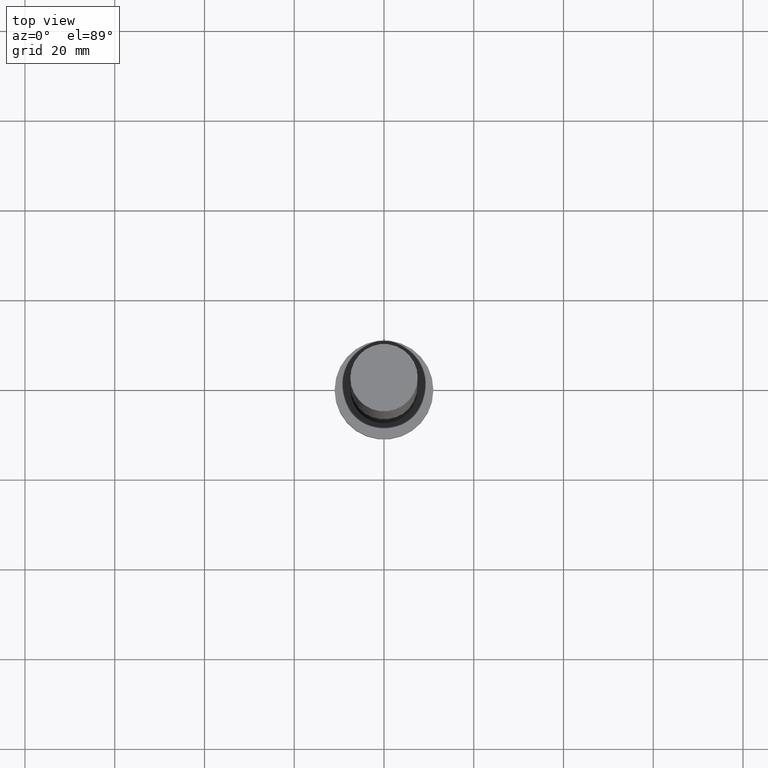
[diagram: clean part render]
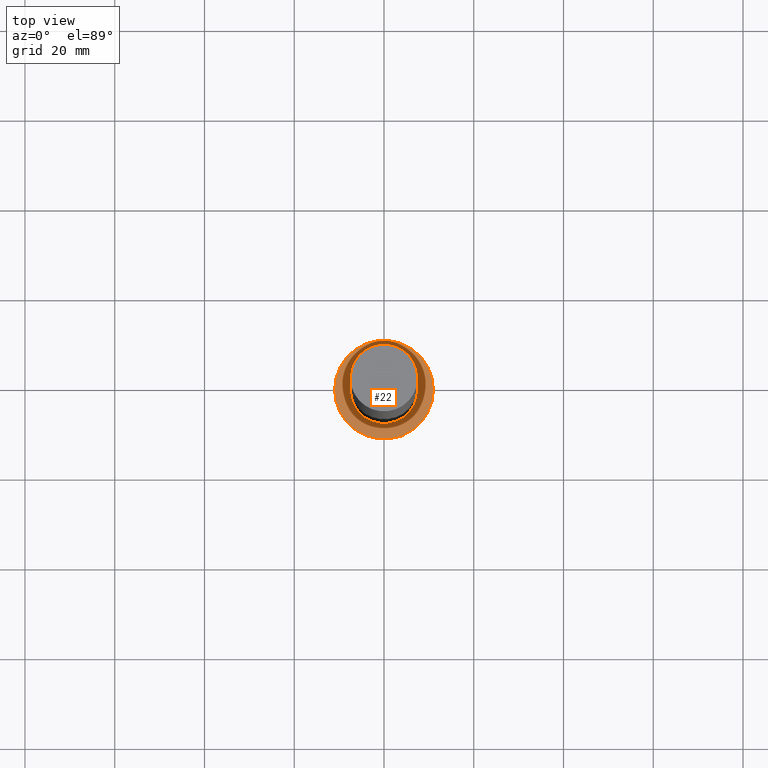
[diagram: same view with one face highlighted and labeled with its STEP entity id]
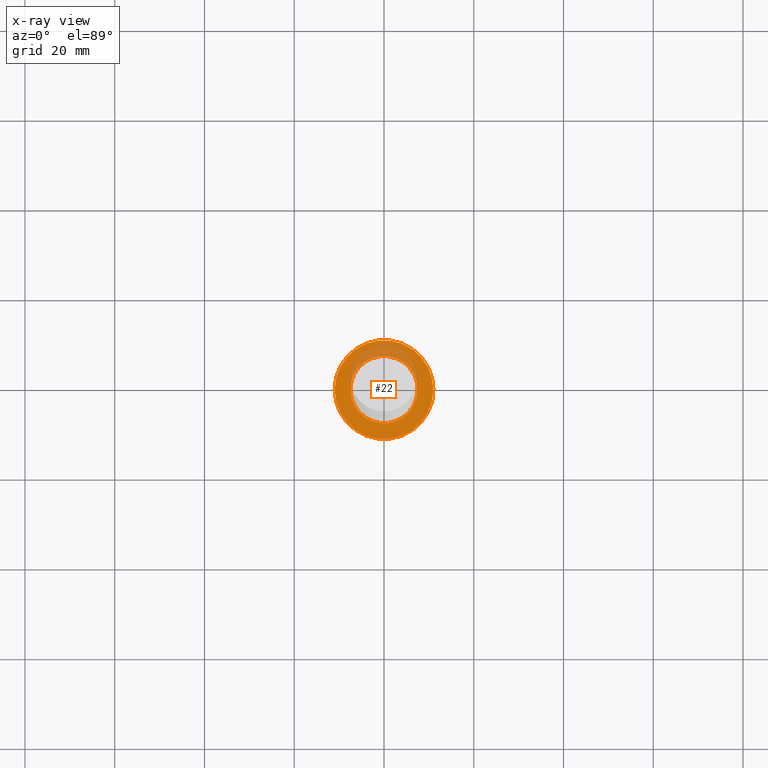
[diagram: x-ray of the same camera — body ghosted, the highlighted face saturated]
A machine part, top view. The second image highlights one B-rep face of the part: STEP entity #22.
The next image is the same camera in x-ray: the body ghosted, the highlighted face saturated — about 20% of this face is hidden behind the body in this view.
In plain terms, the highlighted planar face has unit normal (0, 0, 1).
Its self-contained STEP definition (entity closure, byte-faithful):
#2 = DIRECTION ( 'NONE',  ( 0.000000000000000000, 0.000000000000000000, 1.000000000000000000 ) ) ;
#3 = DIRECTION ( 'NONE',  ( 1.000000000000000000, 0.000000000000000000, 0.000000000000000000 ) ) ;
#15 = CARTESIAN_POINT ( 'NONE',  ( 0.000000000000000000, 0.000000000000000000, 7.000000000000000000 ) ) ;
#20 = DIRECTION ( 'NONE',  ( 0.000000000000000000, 0.000000000000000000, 1.000000000000000000 ) ) ;
#22 = ADVANCED_FACE ( 'NONE', ( #137, #196 ), #174, .T. ) ;
#32 = AXIS2_PLACEMENT_3D ( 'NONE', #144, #181, #3 ) ;
#36 = EDGE_LOOP ( 'NONE', ( #229, #52 ) ) ;
#39 = DIRECTION ( 'NONE',  ( 1.000000000000000000, 0.000000000000000000, 0.000000000000000000 ) ) ;
#42 = CARTESIAN_POINT ( 'NONE',  ( 0.000000000000000000, 0.000000000000000000, 7.000000000000000000 ) ) ;
#44 = CARTESIAN_POINT ( 'NONE',  ( 7.500000000000000000, 9.184850993605147944E-16, 7.000000000000000000 ) ) ;
#52 = ORIENTED_EDGE ( 'NONE', *, *, #151, .T. ) ;
#58 = VERTEX_POINT ( 'NONE', #135 ) ;
#59 = VERTEX_POINT ( 'NONE', #44 ) ;
#62 = DIRECTION ( 'NONE',  ( 1.000000000000000000, 0.000000000000000000, -0.000000000000000000 ) ) ;
#68 = EDGE_CURVE ( 'NONE', #58, #103, #104, .T. ) ;
#71 = EDGE_CURVE ( 'NONE', #59, #76, #79, .T. ) ;
#72 = EDGE_LOOP ( 'NONE', ( #131, #224 ) ) ;
#74 = AXIS2_PLACEMENT_3D ( 'NONE', #42, #252, #62 ) ;
#76 = VERTEX_POINT ( 'NONE', #90 ) ;
#79 = CIRCLE ( 'NONE', #240, 7.500000000000000000 ) ;
#90 = CARTESIAN_POINT ( 'NONE',  ( -7.500000000000000000, 0.000000000000000000, 7.000000000000000000 ) ) ;
#93 = CIRCLE ( 'NONE', #32, 7.500000000000000000 ) ;
#100 = DIRECTION ( 'NONE',  ( 0.000000000000000000, 0.000000000000000000, 1.000000000000000000 ) ) ;
#103 = VERTEX_POINT ( 'NONE', #209 ) ;
#104 = CIRCLE ( 'NONE', #197, 11.00000000000000000 ) ;
#108 = AXIS2_PLACEMENT_3D ( 'NONE', #15, #100, #176 ) ;
#121 = CARTESIAN_POINT ( 'NONE',  ( 0.000000000000000000, 0.000000000000000000, 7.000000000000000000 ) ) ;
#131 = ORIENTED_EDGE ( 'NONE', *, *, #219, .F. ) ;
#135 = CARTESIAN_POINT ( 'NONE',  ( -11.00000000000000000, 0.000000000000000000, 7.000000000000000000 ) ) ;
#137 = FACE_BOUND ( 'NONE', #72, .T. ) ;
#144 = CARTESIAN_POINT ( 'NONE',  ( 0.000000000000000000, 0.000000000000000000, 7.000000000000000000 ) ) ;
#151 = EDGE_CURVE ( 'NONE', #103, #58, #183, .T. ) ;
#154 = CARTESIAN_POINT ( 'NONE',  ( 0.000000000000000000, 0.000000000000000000, 7.000000000000000000 ) ) ;
#174 = PLANE ( 'NONE',  #74 ) ;
#176 = DIRECTION ( 'NONE',  ( 1.000000000000000000, 0.000000000000000000, 0.000000000000000000 ) ) ;
#178 = DIRECTION ( 'NONE',  ( 1.000000000000000000, 0.000000000000000000, 0.000000000000000000 ) ) ;
#181 = DIRECTION ( 'NONE',  ( 0.000000000000000000, 0.000000000000000000, 1.000000000000000000 ) ) ;
#183 = CIRCLE ( 'NONE', #108, 11.00000000000000000 ) ;
#196 = FACE_OUTER_BOUND ( 'NONE', #36, .T. ) ;
#197 = AXIS2_PLACEMENT_3D ( 'NONE', #121, #2, #178 ) ;
#209 = CARTESIAN_POINT ( 'NONE',  ( 11.00000000000000000, 1.347111479062088405E-15, 7.000000000000000000 ) ) ;
#219 = EDGE_CURVE ( 'NONE', #76, #59, #93, .T. ) ;
#224 = ORIENTED_EDGE ( 'NONE', *, *, #71, .F. ) ;
#229 = ORIENTED_EDGE ( 'NONE', *, *, #68, .T. ) ;
#240 = AXIS2_PLACEMENT_3D ( 'NONE', #154, #20, #39 ) ;
#252 = DIRECTION ( 'NONE',  ( 0.000000000000000000, 0.000000000000000000, 1.000000000000000000 ) ) ;